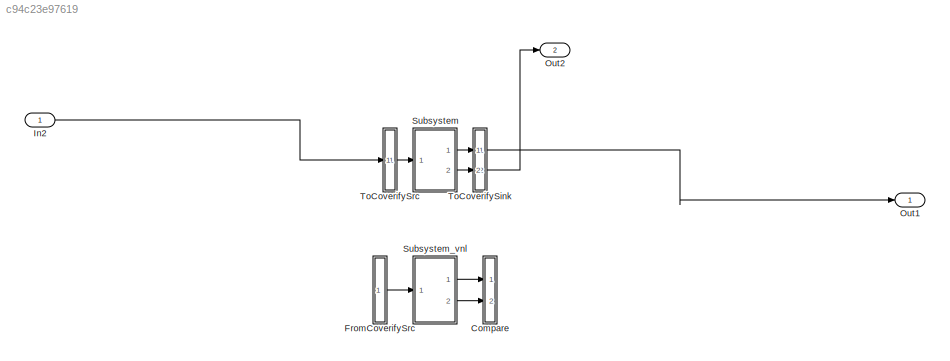
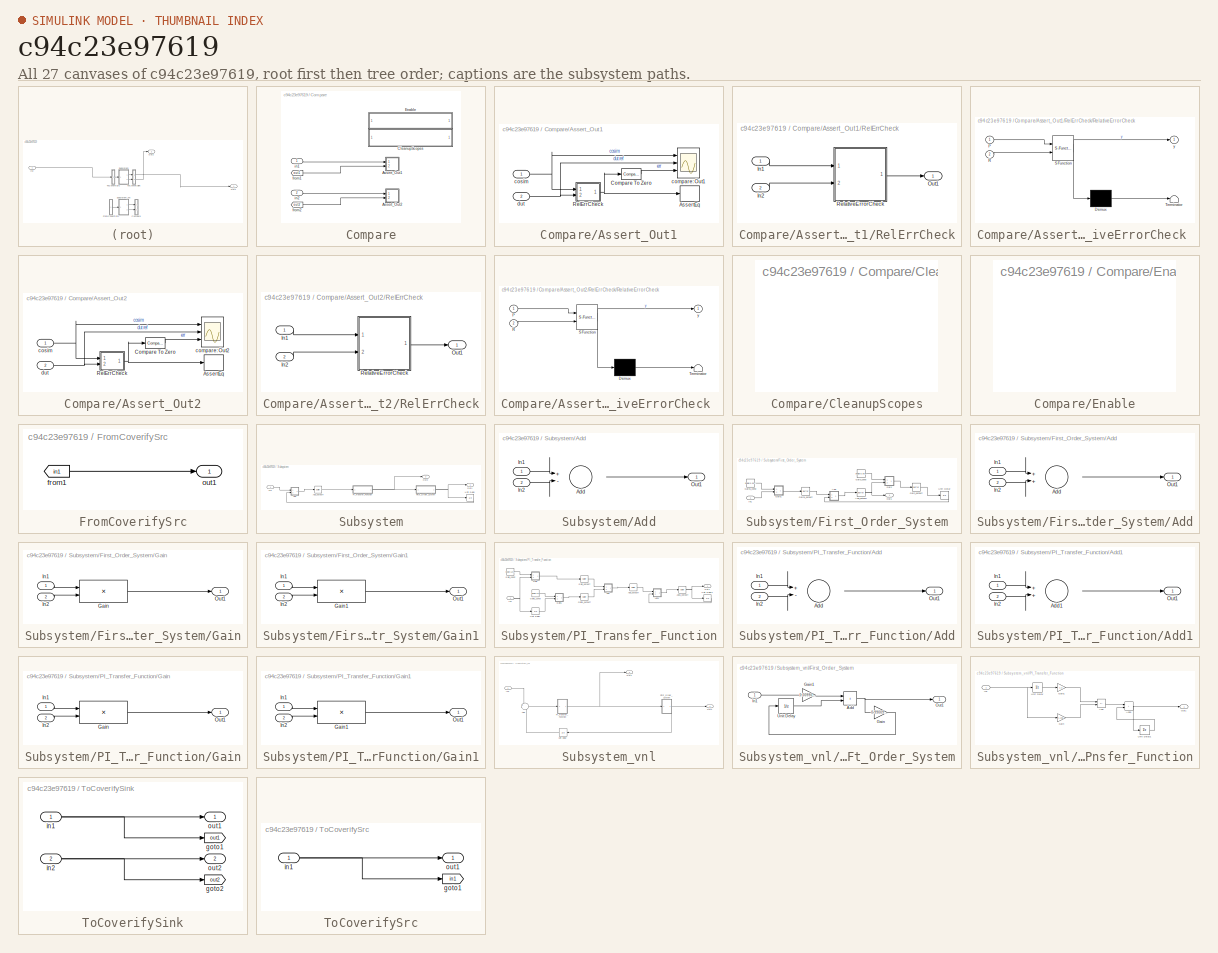
[diagram: thumbnail index - all 27 canvases of the model, root first then tree order]
MODEL slx_c94c23e97619
KIND model
CONFIG AbsTol = auto
CONFIG EnableMultiTasking = off
CONFIG FixedStep = auto
CONFIG MaxStep = auto
CONFIG MinStep = auto
CONFIG RelTol = 1e-3
CONFIG SampleTimeConstraint = Unconstrained
CONFIG SolverName = VariableStepAuto
CONFIG StartTime = 0.0
CONFIG StopTime = 10.0
BLOCK [SubSystem] Compare
  Ports = [2]
  RequestExecContextInheritance = off
BLOCK [SubSystem] Compare/Assert_Out1
  Ports = [2]
  RequestExecContextInheritance = off
BLOCK [Assertion] Compare/Assert_Out1/AssertEq
  StopWhenAssertionFail = off
BLOCK [Reference] Compare/Assert_Out1/Compare To Zero  REF=simulink/Logic and Bit
Operations/Compare
To Zero
  Ports = [1, 1]
  SourceBlock = simulink/Logic and Bit\nOperations/Compare\nTo Zero
  SourceProductBaseCode = SL
  SourceType = Compare To Zero
BLOCK [SubSystem] Compare/Assert_Out1/RelErrCheck
  Ports = [2, 1]
  RequestExecContextInheritance = off
BLOCK [Inport] Compare/Assert_Out1/RelErrCheck/In1
BLOCK [Inport] Compare/Assert_Out1/RelErrCheck/In2
  Port = 2
BLOCK [Outport] Compare/Assert_Out1/RelErrCheck/Out1
  VectorParamsAs1DForOutWhenUnconnected = off
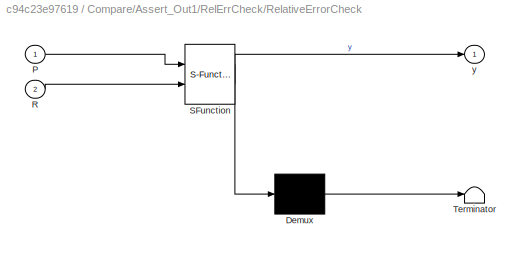
BLOCK [SubSystem] Compare/Assert_Out1/RelErrCheck/RelativeErrorCheck 
  ErrorFcn = Stateflow.Translate.translate
  PermitHierarchicalResolution = ExplicitOnly
  Ports = [2, 1]
  RequestExecContextInheritance = off
  SFBlockType = MATLAB Function
  TreatAsAtomicUnit = on
BLOCK [Demux] Compare/Assert_Out1/RelErrCheck/RelativeErrorCheck / Demux 
  Outputs = 1
  Ports = [1, 1]
BLOCK [S-Function] Compare/Assert_Out1/RelErrCheck/RelativeErrorCheck / SFunction 
  EnableBusSupport = off
  FunctionName = sf_sfun
  Parameters = ToleranceValue
  PortCounts = [2 2]
  Ports = [2, 2]
  SFcnIsStateOwnerBlock = off
  SFunctionDeploymentMode = off
  Tag = Stateflow S-Function 8
BLOCK [Terminator] Compare/Assert_Out1/RelErrCheck/RelativeErrorCheck / Terminator 
BLOCK [Inport] Compare/Assert_Out1/RelErrCheck/RelativeErrorCheck /P
BLOCK [Inport] Compare/Assert_Out1/RelErrCheck/RelativeErrorCheck /R
  Port = 2
BLOCK [Outport] Compare/Assert_Out1/RelErrCheck/RelativeErrorCheck /y
  VectorParamsAs1DForOutWhenUnconnected = off
BLOCK [Scope] Compare/Assert_Out1/compare: Out1
  Floating = off
  NumInputPorts = 3
  Ports = [3]
  ScopeSpecificationString = Simulink.scopes.TimeScopeBlockCfg('CurrentConfiguration', extmgr.ConfigurationSet(extmgr.Configuration('Core','General UI',true,'MessageLogAutoOpenMode','for warn/fail messages','ShowCloseAll',true,'ShowBringAllForward',true),extmgr.Configuration('Core','Source UI',true,'PlaybackToolbar',true),extmgr.Configuration('Sources','WiredSimulink',true,'PointsPerSignal',50000,'DataLoggingDecimation','1','...<+3295ch>
BLOCK [Inport] Compare/Assert_Out1/cosim
BLOCK [Inport] Compare/Assert_Out1/dut
  Port = 2
BLOCK [SubSystem] Compare/Assert_Out2
  Ports = [2]
  RequestExecContextInheritance = off
BLOCK [Assertion] Compare/Assert_Out2/AssertEq
  StopWhenAssertionFail = off
BLOCK [Reference] Compare/Assert_Out2/Compare To Zero  REF=simulink/Logic and Bit
Operations/Compare
To Zero
  Ports = [1, 1]
  SourceBlock = simulink/Logic and Bit\nOperations/Compare\nTo Zero
  SourceProductBaseCode = SL
  SourceType = Compare To Zero
BLOCK [SubSystem] Compare/Assert_Out2/RelErrCheck
  Ports = [2, 1]
  RequestExecContextInheritance = off
BLOCK [Inport] Compare/Assert_Out2/RelErrCheck/In1
BLOCK [Inport] Compare/Assert_Out2/RelErrCheck/In2
  Port = 2
BLOCK [Outport] Compare/Assert_Out2/RelErrCheck/Out1
  VectorParamsAs1DForOutWhenUnconnected = off
BLOCK [SubSystem] Compare/Assert_Out2/RelErrCheck/RelativeErrorCheck 
  ErrorFcn = Stateflow.Translate.translate
  PermitHierarchicalResolution = ExplicitOnly
  Ports = [2, 1]
  RequestExecContextInheritance = off
  SFBlockType = MATLAB Function
  TreatAsAtomicUnit = on
BLOCK [Demux] Compare/Assert_Out2/RelErrCheck/RelativeErrorCheck / Demux 
  Outputs = 1
  Ports = [1, 1]
BLOCK [S-Function] Compare/Assert_Out2/RelErrCheck/RelativeErrorCheck / SFunction 
  EnableBusSupport = off
  FunctionName = sf_sfun
  Parameters = ToleranceValue
  PortCounts = [2 2]
  Ports = [2, 2]
  SFcnIsStateOwnerBlock = off
  SFunctionDeploymentMode = off
  Tag = Stateflow S-Function 1
BLOCK [Terminator] Compare/Assert_Out2/RelErrCheck/RelativeErrorCheck / Terminator 
BLOCK [Inport] Compare/Assert_Out2/RelErrCheck/RelativeErrorCheck /P
BLOCK [Inport] Compare/Assert_Out2/RelErrCheck/RelativeErrorCheck /R
  Port = 2
BLOCK [Outport] Compare/Assert_Out2/RelErrCheck/RelativeErrorCheck /y
  VectorParamsAs1DForOutWhenUnconnected = off
BLOCK [Scope] Compare/Assert_Out2/compare: Out2
  Floating = off
  NumInputPorts = 3
  Ports = [3]
  ScopeSpecificationString = Simulink.scopes.TimeScopeBlockCfg('CurrentConfiguration', extmgr.ConfigurationSet(extmgr.Configuration('Core','General UI',true,'MessageLogAutoOpenMode','for warn/fail messages','ShowCloseAll',true,'ShowBringAllForward',true),extmgr.Configuration('Core','Source UI',true,'PlaybackToolbar',true),extmgr.Configuration('Sources','WiredSimulink',true,'PointsPerSignal',50000,'DataLoggingDecimation','1','...<+3295ch>
BLOCK [Inport] Compare/Assert_Out2/cosim
BLOCK [Inport] Compare/Assert_Out2/dut
  Port = 2
BLOCK [SubSystem] Compare/CleanupScopes
  OpenFcn = blkName = gcb; %self block\nidx = regexp(blkName, '/CleanupScopes$', 'once');\nblkParent = blkName(1:idx-1);\nblks=find_system(blkParent, 'LookUnderMasks', 'all','blocktype', 'Scope');\nfor itr = 1:length(blks)\n	 hScopeCfg = get_param(blks{itr},'ScopeConfiguration');\n	 hScopeCfg.Visible = ~ hScopeCfg.Visible;\nend\ndrawnow;
  Ports = []
  RequestExecContextInheritance = off
BLOCK [SubSystem] Compare/Enable
  OpenFcn = blkName = gcb;\nidx = regexp(blkName, '/Enable$', 'once');\nblkParent = blkName(1:idx-1);\nblks=find_system(blkParent, 'LookUnderMasks', 'all','blocktype', 'Assertion');\ne = get_param(blks{1}, 'Enabled');\nif strcmp(e, 'on'), f= 'off';, else, f = 'on';, end\nfor ii=1:length(blks), set_param(blks{ii}, 'Enabled', f);, end\nset_param(gcb, 'MaskDisplay',['fprintf(message(''hdlcoder:cosim:vnl_dblclick_assert...<+47ch>
  Ports = []
  RequestExecContextInheritance = off
BLOCK [From] Compare/from1
  GotoTag = out1
  TagVisibility = global
BLOCK [From] Compare/from2
  GotoTag = out2
  TagVisibility = global
BLOCK [Inport] Compare/in1
BLOCK [Inport] Compare/in2
  Port = 2
BLOCK [SubSystem] FromCoverifySrc
  Ports = [0, 1]
  RequestExecContextInheritance = off
BLOCK [From] FromCoverifySrc/from1
  GotoTag = in1
  TagVisibility = global
BLOCK [Outport] FromCoverifySrc/out1
BLOCK [Inport] In2
BLOCK [Outport] Out1
  SignalName = C
  VectorParamsAs1DForOutWhenUnconnected = off
BLOCK [Outport] Out2
  Port = 2
  SignalName = U
  VectorParamsAs1DForOutWhenUnconnected = off
BLOCK [SubSystem] Subsystem
  Ports = [1, 2]
  RequestExecContextInheritance = off
BLOCK [SubSystem] Subsystem/Add
  Ports = [2, 1]
  RequestExecContextInheritance = off
BLOCK [Sum] Subsystem/Add/Add
  Inputs = +-
  OutDataTypeStr = single
  Ports = [2, 1]
  SampleTime = 0.2
BLOCK [Inport] Subsystem/Add/In1
BLOCK [Inport] Subsystem/Add/In2
  Port = 2
BLOCK [Outport] Subsystem/Add/Out1
BLOCK [Reference] Subsystem/Add_outbuff  REF=hdlmdlgenlib/Buffer
  Ports = [1, 1]
  SourceBlock = hdlmdlgenlib/Buffer
  SourceProductBaseCode = SL
  SourceType = Buffer/Wire
BLOCK [SubSystem] Subsystem/First_Order_System
  Ports = [1, 1]
  RequestExecContextInheritance = off
BLOCK [SubSystem] Subsystem/First_Order_System/Add
  Ports = [2, 1]
  RequestExecContextInheritance = off
BLOCK [Sum] Subsystem/First_Order_System/Add/Add
  OutDataTypeStr = single
  Ports = [2, 1]
  SampleTime = 0.2
BLOCK [Inport] Subsystem/First_Order_System/Add/In1
BLOCK [Inport] Subsystem/First_Order_System/Add/In2
  Port = 2
BLOCK [Outport] Subsystem/First_Order_System/Add/Out1
BLOCK [Reference] Subsystem/First_Order_System/Add_outbuff  REF=hdlmdlgenlib/Buffer
  Ports = [1, 1]
  SourceBlock = hdlmdlgenlib/Buffer
  SourceProductBaseCode = SL
  SourceType = Buffer/Wire
BLOCK [SubSystem] Subsystem/First_Order_System/Gain
  Ports = [2, 1]
  RequestExecContextInheritance = off
BLOCK [Product] Subsystem/First_Order_System/Gain/Gain
  Inputs = **
  OutDataTypeStr = single
  Ports = [2, 1]
  SampleTime = 0.2
BLOCK [Inport] Subsystem/First_Order_System/Gain/In1
BLOCK [Inport] Subsystem/First_Order_System/Gain/In2
  Port = 2
BLOCK [Outport] Subsystem/First_Order_System/Gain/Out1
BLOCK [SubSystem] Subsystem/First_Order_System/Gain1
  Ports = [2, 1]
  RequestExecContextInheritance = off
BLOCK [Product] Subsystem/First_Order_System/Gain1/Gain1
  Inputs = **
  OutDataTypeStr = single
  Ports = [2, 1]
  SampleTime = 0.2
BLOCK [Inport] Subsystem/First_Order_System/Gain1/In1
BLOCK [Inport] Subsystem/First_Order_System/Gain1/In2
  Port = 2
BLOCK [Outport] Subsystem/First_Order_System/Gain1/Out1
BLOCK [Constant] Subsystem/First_Order_System/Gain1_const
  OutDataTypeStr = single
  SampleTime = 0.2
  Value = single(0.009900989942252636)
BLOCK [Reference] Subsystem/First_Order_System/Gain1_outbuff  REF=hdlmdlgenlib/Buffer
  Ports = [1, 1]
  SourceBlock = hdlmdlgenlib/Buffer
  SourceProductBaseCode = SL
  SourceType = Buffer/Wire
BLOCK [Constant] Subsystem/First_Order_System/Gain_const
  OutDataTypeStr = single
  SampleTime = 0.2
  Value = single(0.9900990128517151)
BLOCK [Reference] Subsystem/First_Order_System/Gain_outbuff  REF=hdlmdlgenlib/Buffer
  Ports = [1, 1]
  SourceBlock = hdlmdlgenlib/Buffer
  SourceProductBaseCode = SL
  SourceType = Buffer/Wire
BLOCK [Inport] Subsystem/First_Order_System/In1
  OutDataTypeStr = single
  PortDimensions = 1
  SampleTime = 0.2
BLOCK [Outport] Subsystem/First_Order_System/Out1
  VectorParamsAs1DForOutWhenUnconnected = off
BLOCK [UnitDelay] Subsystem/First_Order_System/Unit Delay
  InitialCondition = single(0)
  SampleTime = 0.2
BLOCK [Inport] Subsystem/In2
  OutDataTypeStr = single
  PortDimensions = 1
  SampleTime = 0.2
BLOCK [Outport] Subsystem/Out1
  OutDataTypeStr = single
  VectorParamsAs1DForOutWhenUnconnected = off
BLOCK [Outport] Subsystem/Out2
  OutDataTypeStr = single
  Port = 2
  VectorParamsAs1DForOutWhenUnconnected = off
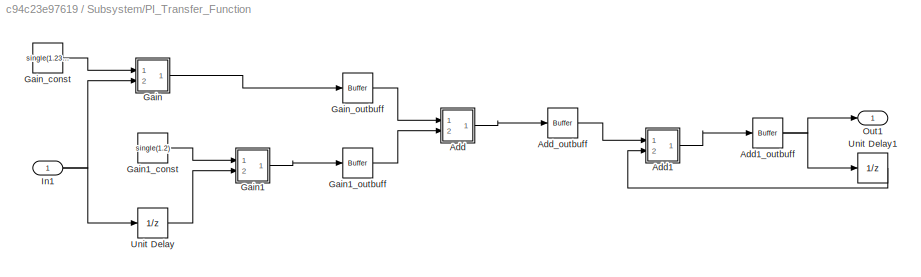
BLOCK [SubSystem] Subsystem/PI_Transfer_Function
  Ports = [1, 1]
  RequestExecContextInheritance = off
BLOCK [SubSystem] Subsystem/PI_Transfer_Function/Add
  Ports = [2, 1]
  RequestExecContextInheritance = off
BLOCK [Sum] Subsystem/PI_Transfer_Function/Add/Add
  Inputs = +-
  OutDataTypeStr = single
  Ports = [2, 1]
  SampleTime = 0.2
BLOCK [Inport] Subsystem/PI_Transfer_Function/Add/In1
BLOCK [Inport] Subsystem/PI_Transfer_Function/Add/In2
  Port = 2
BLOCK [Outport] Subsystem/PI_Transfer_Function/Add/Out1
BLOCK [SubSystem] Subsystem/PI_Transfer_Function/Add1
  Ports = [2, 1]
  RequestExecContextInheritance = off
BLOCK [Sum] Subsystem/PI_Transfer_Function/Add1/Add1
  OutDataTypeStr = single
  Ports = [2, 1]
  SampleTime = 0.2
BLOCK [Inport] Subsystem/PI_Transfer_Function/Add1/In1
BLOCK [Inport] Subsystem/PI_Transfer_Function/Add1/In2
  Port = 2
BLOCK [Outport] Subsystem/PI_Transfer_Function/Add1/Out1
BLOCK [Reference] Subsystem/PI_Transfer_Function/Add1_outbuff  REF=hdlmdlgenlib/Buffer
  Ports = [1, 1]
  SourceBlock = hdlmdlgenlib/Buffer
  SourceProductBaseCode = SL
  SourceType = Buffer/Wire
BLOCK [Reference] Subsystem/PI_Transfer_Function/Add_outbuff  REF=hdlmdlgenlib/Buffer
  Ports = [1, 1]
  SourceBlock = hdlmdlgenlib/Buffer
  SourceProductBaseCode = SL
  SourceType = Buffer/Wire
BLOCK [SubSystem] Subsystem/PI_Transfer_Function/Gain
  Ports = [2, 1]
  RequestExecContextInheritance = off
BLOCK [Product] Subsystem/PI_Transfer_Function/Gain/Gain
  Inputs = **
  OutDataTypeStr = single
  Ports = [2, 1]
  SampleTime = 0.2
BLOCK [Inport] Subsystem/PI_Transfer_Function/Gain/In1
BLOCK [Inport] Subsystem/PI_Transfer_Function/Gain/In2
  Port = 2
BLOCK [Outport] Subsystem/PI_Transfer_Function/Gain/Out1
BLOCK [SubSystem] Subsystem/PI_Transfer_Function/Gain1
  Ports = [2, 1]
  RequestExecContextInheritance = off
BLOCK [Product] Subsystem/PI_Transfer_Function/Gain1/Gain1
  Inputs = **
  OutDataTypeStr = single
  Ports = [2, 1]
  SampleTime = 0.2
BLOCK [Inport] Subsystem/PI_Transfer_Function/Gain1/In1
BLOCK [Inport] Subsystem/PI_Transfer_Function/Gain1/In2
  Port = 2
BLOCK [Outport] Subsystem/PI_Transfer_Function/Gain1/Out1
BLOCK [Constant] Subsystem/PI_Transfer_Function/Gain1_const
  OutDataTypeStr = single
  SampleTime = 0.2
  Value = single(1.2)
BLOCK [Reference] Subsystem/PI_Transfer_Function/Gain1_outbuff  REF=hdlmdlgenlib/Buffer
  Ports = [1, 1]
  SourceBlock = hdlmdlgenlib/Buffer
  SourceProductBaseCode = SL
  SourceType = Buffer/Wire
BLOCK [Constant] Subsystem/PI_Transfer_Function/Gain_const
  OutDataTypeStr = single
  SampleTime = 0.2
  Value = single(1.236)
BLOCK [Reference] Subsystem/PI_Transfer_Function/Gain_outbuff  REF=hdlmdlgenlib/Buffer
  Ports = [1, 1]
  SourceBlock = hdlmdlgenlib/Buffer
  SourceProductBaseCode = SL
  SourceType = Buffer/Wire
BLOCK [Inport] Subsystem/PI_Transfer_Function/In1
  OutDataTypeStr = single
  PortDimensions = 1
  SampleTime = 0.2
BLOCK [Outport] Subsystem/PI_Transfer_Function/Out1
  VectorParamsAs1DForOutWhenUnconnected = off
BLOCK [UnitDelay] Subsystem/PI_Transfer_Function/Unit Delay
  InitialCondition = single(0)
  SampleTime = 0.2
BLOCK [UnitDelay] Subsystem/PI_Transfer_Function/Unit Delay1
  InitialCondition = single(0)
  SampleTime = 0.2
BLOCK [UnitDelay] Subsystem/Unit Delay
  InitialCondition = single(0)
  SampleTime = 0.2
BLOCK [SubSystem] Subsystem_vnl
  Ports = [1, 2]
  RequestExecContextInheritance = off
BLOCK [Sum] Subsystem_vnl/Add
  AccumDataTypeStr = single
  Inputs = +-
  Ports = [2, 1]
BLOCK [SubSystem] Subsystem_vnl/First_Order_System
  Ports = [1, 1]
  RequestExecContextInheritance = off
BLOCK [Sum] Subsystem_vnl/First_Order_System/Add
  AccumDataTypeStr = single
  IconShape = rectangular
  Ports = [2, 1]
BLOCK [Gain] Subsystem_vnl/First_Order_System/Gain
  Gain = 0.99009901
  OutDataTypeStr = single
  ParamDataTypeStr = single
BLOCK [Gain] Subsystem_vnl/First_Order_System/Gain1
  Gain = 0.0099009901
  OutDataTypeStr = single
  ParamDataTypeStr = single
BLOCK [Inport] Subsystem_vnl/First_Order_System/In1
BLOCK [Outport] Subsystem_vnl/First_Order_System/Out1
  VectorParamsAs1DForOutWhenUnconnected = off
BLOCK [UnitDelay] Subsystem_vnl/First_Order_System/Unit Delay
  HasFrameUpgradeWarning = on
  SampleTime = -1
BLOCK [Inport] Subsystem_vnl/In2
  OutDataTypeStr = single
BLOCK [Outport] Subsystem_vnl/Out1
  OutDataTypeStr = single
  VectorParamsAs1DForOutWhenUnconnected = off
BLOCK [Outport] Subsystem_vnl/Out2
  OutDataTypeStr = single
  Port = 2
  VectorParamsAs1DForOutWhenUnconnected = off
BLOCK [SubSystem] Subsystem_vnl/PI_Transfer_Function
  Ports = [1, 1]
  RequestExecContextInheritance = off
BLOCK [Sum] Subsystem_vnl/PI_Transfer_Function/Add
  AccumDataTypeStr = single
  IconShape = rectangular
  Inputs = -+
  Ports = [2, 1]
BLOCK [Sum] Subsystem_vnl/PI_Transfer_Function/Add1
  AccumDataTypeStr = single
  IconShape = rectangular
  Ports = [2, 1]
BLOCK [Gain] Subsystem_vnl/PI_Transfer_Function/Gain
  Gain = 1.236
  OutDataTypeStr = single
  ParamDataTypeStr = single
BLOCK [Gain] Subsystem_vnl/PI_Transfer_Function/Gain1
  Gain = 1.2
  OutDataTypeStr = single
  ParamDataTypeStr = single
BLOCK [Inport] Subsystem_vnl/PI_Transfer_Function/In1
BLOCK [Outport] Subsystem_vnl/PI_Transfer_Function/Out1
  VectorParamsAs1DForOutWhenUnconnected = off
BLOCK [UnitDelay] Subsystem_vnl/PI_Transfer_Function/Unit Delay
  HasFrameUpgradeWarning = on
  SampleTime = -1
BLOCK [UnitDelay] Subsystem_vnl/PI_Transfer_Function/Unit Delay1
  HasFrameUpgradeWarning = on
  SampleTime = -1
BLOCK [UnitDelay] Subsystem_vnl/Unit Delay
  HasFrameUpgradeWarning = on
  NameLocation = top
  SampleTime = -1
BLOCK [SubSystem] ToCoverifySink
  Ports = [2, 2]
  RequestExecContextInheritance = off
BLOCK [Goto] ToCoverifySink/goto1
  GotoTag = out1
  TagVisibility = global
BLOCK [Goto] ToCoverifySink/goto2
  GotoTag = out2
  TagVisibility = global
BLOCK [Inport] ToCoverifySink/in1
BLOCK [Inport] ToCoverifySink/in2
  Port = 2
BLOCK [Outport] ToCoverifySink/out1
BLOCK [Outport] ToCoverifySink/out2
  Port = 2
BLOCK [SubSystem] ToCoverifySrc
  Ports = [1, 1]
  RequestExecContextInheritance = off
BLOCK [Goto] ToCoverifySrc/goto1
  GotoTag = in1
  TagVisibility = global
BLOCK [Inport] ToCoverifySrc/in1
BLOCK [Outport] ToCoverifySrc/out1
LINE Compare/Assert_Out1/Compare To Zero:1 -> Compare/Assert_Out1/compare: Out1:3
LINE Compare/Assert_Out1/RelErrCheck/In1:1 -> Compare/Assert_Out1/RelErrCheck/RelativeErrorCheck :1
LINE Compare/Assert_Out1/RelErrCheck/In2:1 -> Compare/Assert_Out1/RelErrCheck/RelativeErrorCheck :2
LINE Compare/Assert_Out1/RelErrCheck/RelativeErrorCheck :1 -> Compare/Assert_Out1/RelErrCheck/Out1:1
NET Compare/Assert_Out1/RelErrCheck:1 -> Compare/Assert_Out1/AssertEq:1, Compare/Assert_Out1/Compare To Zero:1
NET Compare/Assert_Out1/cosim:1 -> Compare/Assert_Out1/RelErrCheck:1, Compare/Assert_Out1/compare: Out1:1
NET Compare/Assert_Out1/dut:1 -> Compare/Assert_Out1/RelErrCheck:2, Compare/Assert_Out1/compare: Out1:2
LINE Compare/Assert_Out2/Compare To Zero:1 -> Compare/Assert_Out2/compare: Out2:3
LINE Compare/Assert_Out2/RelErrCheck/In1:1 -> Compare/Assert_Out2/RelErrCheck/RelativeErrorCheck :1
LINE Compare/Assert_Out2/RelErrCheck/In2:1 -> Compare/Assert_Out2/RelErrCheck/RelativeErrorCheck :2
LINE Compare/Assert_Out2/RelErrCheck/RelativeErrorCheck :1 -> Compare/Assert_Out2/RelErrCheck/Out1:1
NET Compare/Assert_Out2/RelErrCheck:1 -> Compare/Assert_Out2/AssertEq:1, Compare/Assert_Out2/Compare To Zero:1
NET Compare/Assert_Out2/cosim:1 -> Compare/Assert_Out2/RelErrCheck:1, Compare/Assert_Out2/compare: Out2:1
NET Compare/Assert_Out2/dut:1 -> Compare/Assert_Out2/RelErrCheck:2, Compare/Assert_Out2/compare: Out2:2
LINE Compare/from1:1 -> Compare/Assert_Out1:2
LINE Compare/from2:1 -> Compare/Assert_Out2:2
LINE Compare/in1:1 -> Compare/Assert_Out1:1
LINE Compare/in2:1 -> Compare/Assert_Out2:1
LINE FromCoverifySrc/from1:1 -> FromCoverifySrc/out1:1
LINE FromCoverifySrc:1 -> Subsystem_vnl:1
LINE In2:1 -> ToCoverifySrc:1
LINE Subsystem/Add/Add:1 -> Subsystem/Add/Out1:1
LINE Subsystem/Add/In1:1 -> Subsystem/Add/Add:1
LINE Subsystem/Add/In2:1 -> Subsystem/Add/Add:2
LINE Subsystem/Add:1 -> Subsystem/Add_outbuff:1
LINE Subsystem/Add_outbuff:1 -> Subsystem/PI_Transfer_Function:1
LINE Subsystem/First_Order_System/Add/Add:1 -> Subsystem/First_Order_System/Add/Out1:1
LINE Subsystem/First_Order_System/Add/In1:1 -> Subsystem/First_Order_System/Add/Add:1
LINE Subsystem/First_Order_System/Add/In2:1 -> Subsystem/First_Order_System/Add/Add:2
LINE Subsystem/First_Order_System/Add:1 -> Subsystem/First_Order_System/Add_outbuff:1
NET Subsystem/First_Order_System/Add_outbuff:1 -> Subsystem/First_Order_System/Gain:2, Subsystem/First_Order_System/Out1:1
LINE Subsystem/First_Order_System/Gain/Gain:1 -> Subsystem/First_Order_System/Gain/Out1:1
LINE Subsystem/First_Order_System/Gain/In1:1 -> Subsystem/First_Order_System/Gain/Gain:1
LINE Subsystem/First_Order_System/Gain/In2:1 -> Subsystem/First_Order_System/Gain/Gain:2
LINE Subsystem/First_Order_System/Gain1/Gain1:1 -> Subsystem/First_Order_System/Gain1/Out1:1
LINE Subsystem/First_Order_System/Gain1/In1:1 -> Subsystem/First_Order_System/Gain1/Gain1:1
LINE Subsystem/First_Order_System/Gain1/In2:1 -> Subsystem/First_Order_System/Gain1/Gain1:2
LINE Subsystem/First_Order_System/Gain1:1 -> Subsystem/First_Order_System/Gain1_outbuff:1
LINE Subsystem/First_Order_System/Gain1_const:1 -> Subsystem/First_Order_System/Gain1:1
LINE Subsystem/First_Order_System/Gain1_outbuff:1 -> Subsystem/First_Order_System/Add:1
LINE Subsystem/First_Order_System/Gain:1 -> Subsystem/First_Order_System/Gain_outbuff:1
LINE Subsystem/First_Order_System/Gain_const:1 -> Subsystem/First_Order_System/Gain:1
LINE Subsystem/First_Order_System/Gain_outbuff:1 -> Subsystem/First_Order_System/Unit Delay:1
LINE Subsystem/First_Order_System/In1:1 -> Subsystem/First_Order_System/Gain1:2
LINE Subsystem/First_Order_System/Unit Delay:1 -> Subsystem/First_Order_System/Add:2
NET Subsystem/First_Order_System:1 -> Subsystem/Out1:1, Subsystem/Unit Delay:1
LINE Subsystem/In2:1 -> Subsystem/Add:1
LINE Subsystem/PI_Transfer_Function/Add/Add:1 -> Subsystem/PI_Transfer_Function/Add/Out1:1
LINE Subsystem/PI_Transfer_Function/Add/In1:1 -> Subsystem/PI_Transfer_Function/Add/Add:1
LINE Subsystem/PI_Transfer_Function/Add/In2:1 -> Subsystem/PI_Transfer_Function/Add/Add:2
LINE Subsystem/PI_Transfer_Function/Add1/Add1:1 -> Subsystem/PI_Transfer_Function/Add1/Out1:1
LINE Subsystem/PI_Transfer_Function/Add1/In1:1 -> Subsystem/PI_Transfer_Function/Add1/Add1:1
LINE Subsystem/PI_Transfer_Function/Add1/In2:1 -> Subsystem/PI_Transfer_Function/Add1/Add1:2
LINE Subsystem/PI_Transfer_Function/Add1:1 -> Subsystem/PI_Transfer_Function/Add1_outbuff:1
NET Subsystem/PI_Transfer_Function/Add1_outbuff:1 -> Subsystem/PI_Transfer_Function/Out1:1, Subsystem/PI_Transfer_Function/Unit Delay1:1
LINE Subsystem/PI_Transfer_Function/Add:1 -> Subsystem/PI_Transfer_Function/Add_outbuff:1
LINE Subsystem/PI_Transfer_Function/Add_outbuff:1 -> Subsystem/PI_Transfer_Function/Add1:1
LINE Subsystem/PI_Transfer_Function/Gain/Gain:1 -> Subsystem/PI_Transfer_Function/Gain/Out1:1
LINE Subsystem/PI_Transfer_Function/Gain/In1:1 -> Subsystem/PI_Transfer_Function/Gain/Gain:1
LINE Subsystem/PI_Transfer_Function/Gain/In2:1 -> Subsystem/PI_Transfer_Function/Gain/Gain:2
LINE Subsystem/PI_Transfer_Function/Gain1/Gain1:1 -> Subsystem/PI_Transfer_Function/Gain1/Out1:1
LINE Subsystem/PI_Transfer_Function/Gain1/In1:1 -> Subsystem/PI_Transfer_Function/Gain1/Gain1:1
LINE Subsystem/PI_Transfer_Function/Gain1/In2:1 -> Subsystem/PI_Transfer_Function/Gain1/Gain1:2
LINE Subsystem/PI_Transfer_Function/Gain1:1 -> Subsystem/PI_Transfer_Function/Gain1_outbuff:1
LINE Subsystem/PI_Transfer_Function/Gain1_const:1 -> Subsystem/PI_Transfer_Function/Gain1:1
LINE Subsystem/PI_Transfer_Function/Gain1_outbuff:1 -> Subsystem/PI_Transfer_Function/Add:2
LINE Subsystem/PI_Transfer_Function/Gain:1 -> Subsystem/PI_Transfer_Function/Gain_outbuff:1
LINE Subsystem/PI_Transfer_Function/Gain_const:1 -> Subsystem/PI_Transfer_Function/Gain:1
LINE Subsystem/PI_Transfer_Function/Gain_outbuff:1 -> Subsystem/PI_Transfer_Function/Add:1
NET Subsystem/PI_Transfer_Function/In1:1 -> Subsystem/PI_Transfer_Function/Gain:2, Subsystem/PI_Transfer_Function/Unit Delay:1
LINE Subsystem/PI_Transfer_Function/Unit Delay1:1 -> Subsystem/PI_Transfer_Function/Add1:2
LINE Subsystem/PI_Transfer_Function/Unit Delay:1 -> Subsystem/PI_Transfer_Function/Gain1:2
NET Subsystem/PI_Transfer_Function:1 -> Subsystem/First_Order_System:1, Subsystem/Out2:1
LINE Subsystem/Unit Delay:1 -> Subsystem/Add:2
LINE Subsystem:1 -> ToCoverifySink:1
LINE Subsystem:2 -> ToCoverifySink:2
LINE Subsystem_vnl/Add:1 -> Subsystem_vnl/PI_Transfer_Function:1
NET Subsystem_vnl/First_Order_System/Add:1 -> Subsystem_vnl/First_Order_System/Gain:1, Subsystem_vnl/First_Order_System/Out1:1
LINE Subsystem_vnl/First_Order_System/Gain1:1 -> Subsystem_vnl/First_Order_System/Add:1
LINE Subsystem_vnl/First_Order_System/Gain:1 -> Subsystem_vnl/First_Order_System/Unit Delay:1
LINE Subsystem_vnl/First_Order_System/In1:1 -> Subsystem_vnl/First_Order_System/Gain1:1
LINE Subsystem_vnl/First_Order_System/Unit Delay:1 -> Subsystem_vnl/First_Order_System/Add:2
NET Subsystem_vnl/First_Order_System:1 -> Subsystem_vnl/Out1:1, Subsystem_vnl/Unit Delay:1
LINE Subsystem_vnl/In2:1 -> Subsystem_vnl/Add:1
NET Subsystem_vnl/PI_Transfer_Function/Add1:1 -> Subsystem_vnl/PI_Transfer_Function/Out1:1, Subsystem_vnl/PI_Transfer_Function/Unit Delay1:1
LINE Subsystem_vnl/PI_Transfer_Function/Add:1 -> Subsystem_vnl/PI_Transfer_Function/Add1:1
LINE Subsystem_vnl/PI_Transfer_Function/Gain1:1 -> Subsystem_vnl/PI_Transfer_Function/Add:1
LINE Subsystem_vnl/PI_Transfer_Function/Gain:1 -> Subsystem_vnl/PI_Transfer_Function/Add:2
NET Subsystem_vnl/PI_Transfer_Function/In1:1 -> Subsystem_vnl/PI_Transfer_Function/Gain:1, Subsystem_vnl/PI_Transfer_Function/Unit Delay:1
LINE Subsystem_vnl/PI_Transfer_Function/Unit Delay1:1 -> Subsystem_vnl/PI_Transfer_Function/Add1:2
LINE Subsystem_vnl/PI_Transfer_Function/Unit Delay:1 -> Subsystem_vnl/PI_Transfer_Function/Gain1:1
NET Subsystem_vnl/PI_Transfer_Function:1 -> Subsystem_vnl/First_Order_System:1, Subsystem_vnl/Out2:1
LINE Subsystem_vnl/Unit Delay:1 -> Subsystem_vnl/Add:2
LINE Subsystem_vnl:1 -> Compare:1
LINE Subsystem_vnl:2 -> Compare:2
NET ToCoverifySink/in1:1 -> ToCoverifySink/goto1:1, ToCoverifySink/out1:1
NET ToCoverifySink/in2:1 -> ToCoverifySink/goto2:1, ToCoverifySink/out2:1
LINE ToCoverifySink:1 -> Out1:1
LINE ToCoverifySink:2 -> Out2:1
NET ToCoverifySrc/in1:1 -> ToCoverifySrc/goto1:1, ToCoverifySrc/out1:1
LINE ToCoverifySrc:1 -> Subsystem:1
note: NET lines group one-source signal fan-out (src -> all destinations, sorted); 1:1 wires keep LINE
CHART Compare/Assert_Out1/RelErrCheck/RelativeErrorCheck
 states=1 transitions=1
  STATE_LABEL 'eML_blk_kernel()'
  STATE_LABEL "SCRIPT:\n% Check if the relative error of R with respect to P is below\n% ToleranceValue\n% P, R are floating-point\nfunction y = relErrCheck(P,R, ToleranceValue)\n    tol = ToleranceValue;\n    sz = numel(P);\n    assert(sz == numel(R), 'Inputs P and R have different sizes.');\n    y = false(1, sz);\n\n    for ii=1:sz\n        if (isnan(P(ii)) || isnan(R(ii)))\n            if (isnan(P(ii)) && isnan(R(ii)))\n ...<+347ch>"
CHART Compare/Assert_Out2/RelErrCheck/RelativeErrorCheck
 states=1 transitions=1
  STATE_LABEL 'eML_blk_kernel()'
  STATE_LABEL "SCRIPT:\n% Check if the relative error of R with respect to P is below\n% ToleranceValue\n% P, R are floating-point\nfunction y = relErrCheck(P,R, ToleranceValue)\n    tol = ToleranceValue;\n    sz = numel(P);\n    assert(sz == numel(R), 'Inputs P and R have different sizes.');\n    y = false(1, sz);\n\n    for ii=1:sz\n        if (isnan(P(ii)) || isnan(R(ii)))\n            if (isnan(P(ii)) && isnan(R(ii)))\n ...<+347ch>"
CHART  states=0 transitions=0
CHART  states=0 transitions=0
